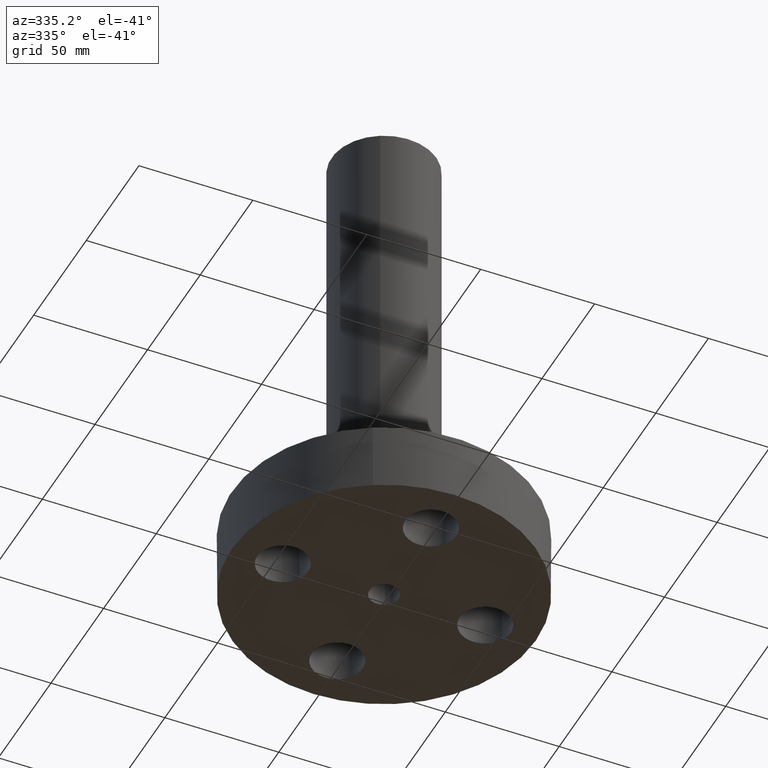
[diagram: clean part render]
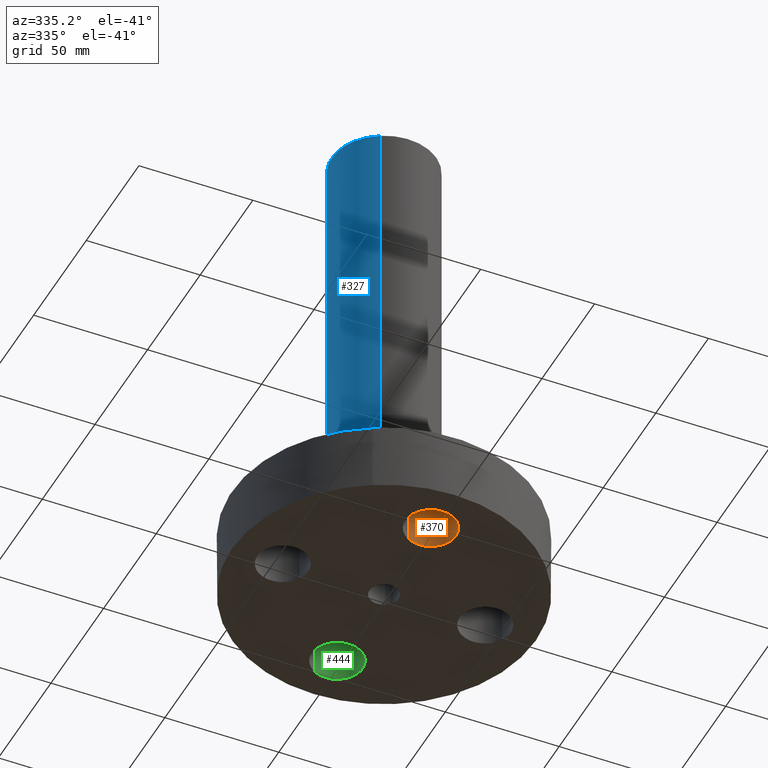
[diagram: same view with three faces highlighted in distinct colors, each labeled with its STEP entity id]
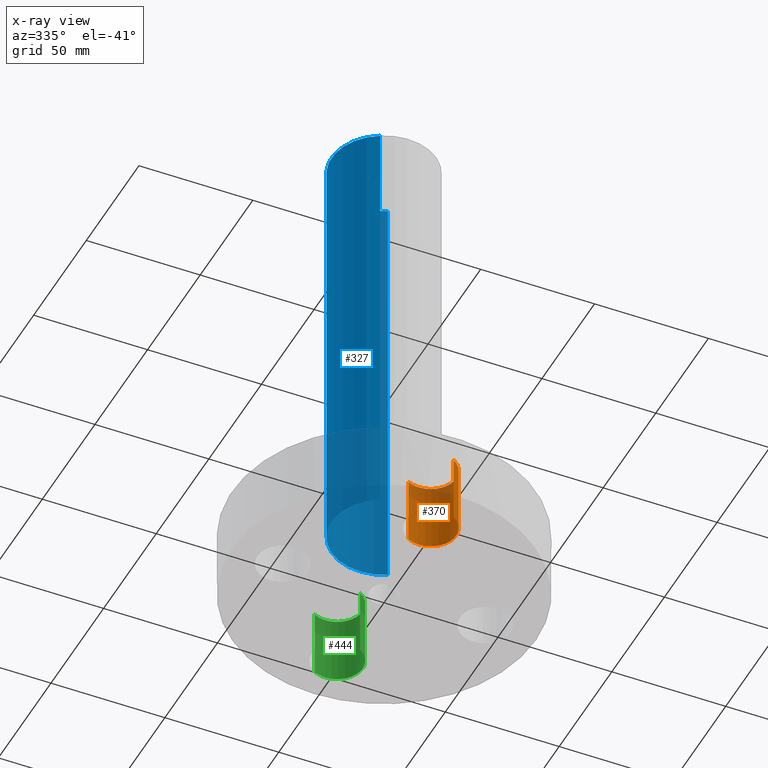
[diagram: x-ray of the same camera — body ghosted, the three highlighted faces saturated]
A machine part, auxiliary view with three faces highlighted in distinct colors.
The next image is the same camera in x-ray (body ghosted, the three faces saturated) — at least one of them is partly hidden behind the body in this view.
Their STEP definitions:

[orange] entity #370 — the highlighted cylindrical surface (edge-blend (fillet) strip) has radius 11.176 mm, axis along (-0, 0, 1).
#139=AXIS2_PLACEMENT_3D('Circle Axis2P3D',#137,#138,$) ;
#331=AXIS2_PLACEMENT_3D('Cylinder Axis2P3D',#328,#329,#330) ;
#361=AXIS2_PLACEMENT_3D('Circle Axis2P3D',#359,#360,$) ;
#137=CARTESIAN_POINT('Axis2P3D Location',(-3.84644197508E-016,-1.75000000001,1.19)) ;
#141=CARTESIAN_POINT('Vertex',(-0.210947236987,-1.36386367277,1.19)) ;
#143=CARTESIAN_POINT('Vertex',(0.210947236987,-2.13613632724,1.19)) ;
#328=CARTESIAN_POINT('Axis2P3D Location',(-1.72584639625E-016,-1.75000000001,0.00393700787402)) ;
#333=CARTESIAN_POINT('Line Origine',(-0.210947236987,-1.36386367277,0.595000000002)) ;
#337=CARTESIAN_POINT('Vertex',(-0.210947236987,-1.36386367277,2.2401153548E-016)) ;
#340=CARTESIAN_POINT('Line Origine',(0.210947236987,-2.13613632724,0.595000000002)) ;
#344=CARTESIAN_POINT('Vertex',(0.210947236987,-2.13613632724,2.2401153548E-016)) ;
#359=CARTESIAN_POINT('Axis2P3D Location',(-1.72584639625E-016,-1.75000000001,0.)) ;
#138=DIRECTION('Axis2P3D Direction',(0.,0.,-0.0393700787402)) ;
#329=DIRECTION('Axis2P3D Direction',(-0.,0.,0.0393700787402)) ;
#330=DIRECTION('Axis2P3D XDirection',(0.0188750212049,-0.0345504945626,0.)) ;
#334=DIRECTION('Vector Direction',(0.,0.,0.0393700787402)) ;
#341=DIRECTION('Vector Direction',(0.,0.,0.0393700787402)) ;
#360=DIRECTION('Axis2P3D Direction',(-0.,0.,0.0393700787402)) ;
#335=VECTOR('Line Direction',#334,0.0393700787402) ;
#342=VECTOR('Line Direction',#341,0.0393700787402) ;
#365=ORIENTED_EDGE('',*,*,#346,.F.) ;
#366=ORIENTED_EDGE('',*,*,#145,.F.) ;
#367=ORIENTED_EDGE('',*,*,#339,.T.) ;
#368=ORIENTED_EDGE('',*,*,#363,.T.) ;
#370=ADVANCED_FACE('PartBody',(#369),#332,.F.) ;
#140=CIRCLE('generated circle',#139,0.440000000002) ;
#362=CIRCLE('generated circle',#361,0.440000000002) ;
#332=CYLINDRICAL_SURFACE('generated cylinder',#331,0.440000000002) ;
#145=EDGE_CURVE('',#142,#144,#140,.T.) ;
#339=EDGE_CURVE('',#142,#338,#336,.F.) ;
#346=EDGE_CURVE('',#144,#345,#343,.F.) ;
#363=EDGE_CURVE('',#338,#345,#362,.F.) ;
#364=EDGE_LOOP('',(#365,#366,#367,#368)) ;
#369=FACE_OUTER_BOUND('',#364,.T.) ;
#336=LINE('Line',#333,#335) ;
#343=LINE('Line',#340,#342) ;
#142=VERTEX_POINT('',#141) ;
#144=VERTEX_POINT('',#143) ;
#338=VERTEX_POINT('',#337) ;
#345=VERTEX_POINT('',#344) ;

[blue] entity #327 — the highlighted cylindrical surface (partial cylindrical patch) has radius 22.987 mm, axis along (0, 0, -1).
#121=AXIS2_PLACEMENT_3D('Circle Axis2P3D',#119,#120,$) ;
#288=AXIS2_PLACEMENT_3D('Cylinder Axis2P3D',#285,#286,#287) ;
#318=AXIS2_PLACEMENT_3D('Circle Axis2P3D',#316,#317,$) ;
#119=CARTESIAN_POINT('Axis2P3D Location',(0.,0.,1.19)) ;
#123=CARTESIAN_POINT('Vertex',(-0.433880112439,-0.794212218514,1.19)) ;
#125=CARTESIAN_POINT('Vertex',(0.433880112439,0.794212218514,1.19)) ;
#285=CARTESIAN_POINT('Axis2P3D Location',(0.,0.,4.25000000002)) ;
#290=CARTESIAN_POINT('Line Origine',(0.433880112439,0.794212218514,4.97000000002)) ;
#294=CARTESIAN_POINT('Vertex',(0.433880112439,0.794212218514,8.75000000003)) ;
#301=CARTESIAN_POINT('Vertex',(-0.433880112439,-0.794212218514,8.75000000003)) ;
#304=CARTESIAN_POINT('Line Origine',(-0.433880112439,-0.794212218514,4.97000000002)) ;
#316=CARTESIAN_POINT('Axis2P3D Location',(0.,0.,8.75000000003)) ;
#120=DIRECTION('Axis2P3D Direction',(0.,0.,-0.0393700787402)) ;
#286=DIRECTION('Axis2P3D Direction',(0.,0.,-0.0393700787402)) ;
#287=DIRECTION('Axis2P3D XDirection',(-0.0188750212049,-0.0345504945626,0.)) ;
#291=DIRECTION('Vector Direction',(0.,0.,-0.0393700787402)) ;
#305=DIRECTION('Vector Direction',(0.,0.,-0.0393700787402)) ;
#317=DIRECTION('Axis2P3D Direction',(0.,0.,-0.0393700787402)) ;
#292=VECTOR('Line Direction',#291,0.0393700787402) ;
#306=VECTOR('Line Direction',#305,0.0393700787402) ;
#322=ORIENTED_EDGE('',*,*,#127,.F.) ;
#323=ORIENTED_EDGE('',*,*,#308,.T.) ;
#324=ORIENTED_EDGE('',*,*,#320,.T.) ;
#325=ORIENTED_EDGE('',*,*,#296,.F.) ;
#327=ADVANCED_FACE('PartBody',(#326),#289,.T.) ;
#122=CIRCLE('generated circle',#121,0.905000000004) ;
#319=CIRCLE('generated circle',#318,0.905000000004) ;
#289=CYLINDRICAL_SURFACE('generated cylinder',#288,0.905000000004) ;
#127=EDGE_CURVE('',#124,#126,#122,.T.) ;
#296=EDGE_CURVE('',#126,#295,#293,.F.) ;
#308=EDGE_CURVE('',#124,#302,#307,.F.) ;
#320=EDGE_CURVE('',#302,#295,#319,.T.) ;
#321=EDGE_LOOP('',(#322,#323,#324,#325)) ;
#326=FACE_OUTER_BOUND('',#321,.T.) ;
#293=LINE('Line',#290,#292) ;
#307=LINE('Line',#304,#306) ;
#124=VERTEX_POINT('',#123) ;
#126=VERTEX_POINT('',#125) ;
#295=VERTEX_POINT('',#294) ;
#302=VERTEX_POINT('',#301) ;

[green] entity #444 — the highlighted cylindrical surface (edge-blend (fillet) strip) has radius 11.176 mm, axis along (0, 0, 1).
#184=AXIS2_PLACEMENT_3D('Circle Axis2P3D',#182,#183,$) ;
#417=AXIS2_PLACEMENT_3D('Cylinder Axis2P3D',#414,#415,#416) ;
#435=AXIS2_PLACEMENT_3D('Circle Axis2P3D',#433,#434,$) ;
#177=CARTESIAN_POINT('Vertex',(0.210947236987,1.36386367277,1.19)) ;
#179=CARTESIAN_POINT('Vertex',(-0.210947236987,2.13613632724,1.19)) ;
#182=CARTESIAN_POINT('Axis2P3D Location',(-4.89547160465E-016,1.75000000001,1.19)) ;
#414=CARTESIAN_POINT('Axis2P3D Location',(-3.21469784777E-016,1.75000000001,0.00393700787402)) ;
#419=CARTESIAN_POINT('Line Origine',(0.210947236987,1.36386367277,0.595000000002)) ;
#423=CARTESIAN_POINT('Vertex',(0.210947236987,1.36386367277,2.2401153548E-016)) ;
#426=CARTESIAN_POINT('Line Origine',(-0.210947236987,2.13613632724,0.595000000002)) ;
#430=CARTESIAN_POINT('Vertex',(-0.210947236987,2.13613632724,2.2401153548E-016)) ;
#433=CARTESIAN_POINT('Axis2P3D Location',(-3.21469784777E-016,1.75000000001,0.)) ;
#183=DIRECTION('Axis2P3D Direction',(0.,0.,-0.0393700787402)) ;
#415=DIRECTION('Axis2P3D Direction',(0.,0.,0.0393700787402)) ;
#416=DIRECTION('Axis2P3D XDirection',(-0.0188750212049,0.0345504945626,0.)) ;
#420=DIRECTION('Vector Direction',(0.,0.,0.0393700787402)) ;
#427=DIRECTION('Vector Direction',(0.,0.,0.0393700787402)) ;
#434=DIRECTION('Axis2P3D Direction',(0.,0.,0.0393700787402)) ;
#421=VECTOR('Line Direction',#420,0.0393700787402) ;
#428=VECTOR('Line Direction',#427,0.0393700787402) ;
#439=ORIENTED_EDGE('',*,*,#425,.F.) ;
#440=ORIENTED_EDGE('',*,*,#186,.F.) ;
#441=ORIENTED_EDGE('',*,*,#432,.T.) ;
#442=ORIENTED_EDGE('',*,*,#437,.T.) ;
#444=ADVANCED_FACE('PartBody',(#443),#418,.F.) ;
#185=CIRCLE('generated circle',#184,0.440000000002) ;
#436=CIRCLE('generated circle',#435,0.440000000002) ;
#418=CYLINDRICAL_SURFACE('generated cylinder',#417,0.440000000002) ;
#186=EDGE_CURVE('',#180,#178,#185,.T.) ;
#425=EDGE_CURVE('',#178,#424,#422,.F.) ;
#432=EDGE_CURVE('',#180,#431,#429,.F.) ;
#437=EDGE_CURVE('',#431,#424,#436,.F.) ;
#438=EDGE_LOOP('',(#439,#440,#441,#442)) ;
#443=FACE_OUTER_BOUND('',#438,.T.) ;
#422=LINE('Line',#419,#421) ;
#429=LINE('Line',#426,#428) ;
#178=VERTEX_POINT('',#177) ;
#180=VERTEX_POINT('',#179) ;
#424=VERTEX_POINT('',#423) ;
#431=VERTEX_POINT('',#430) ;